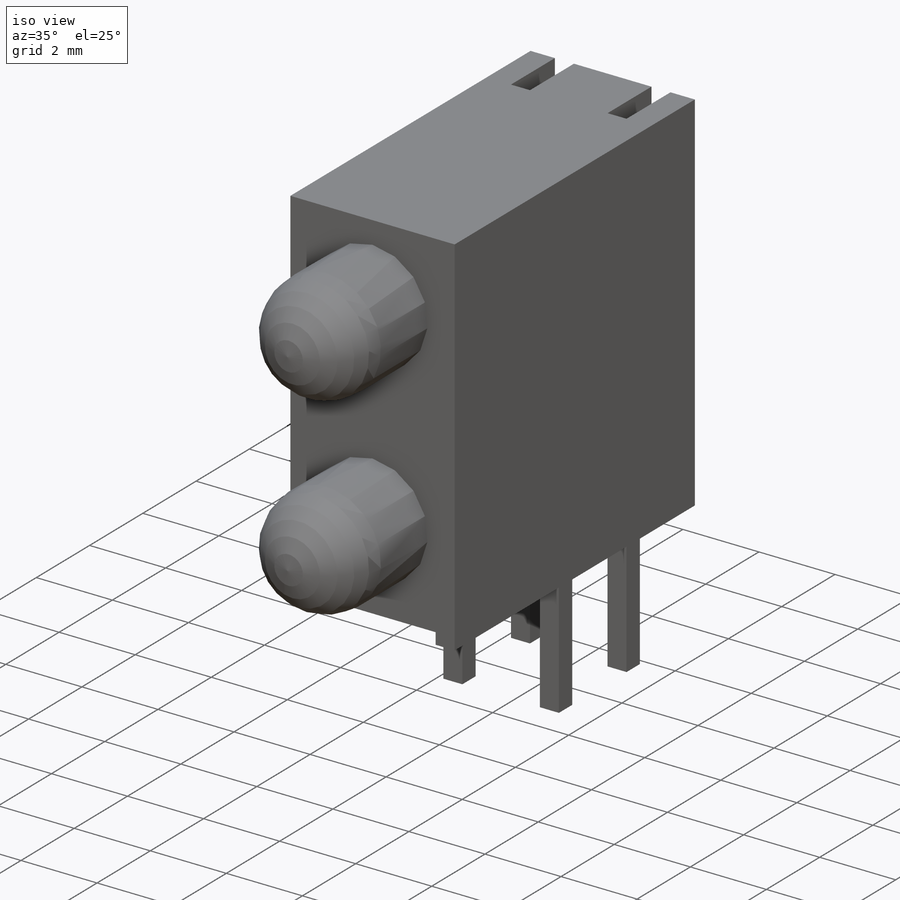
[diagram: iso view]
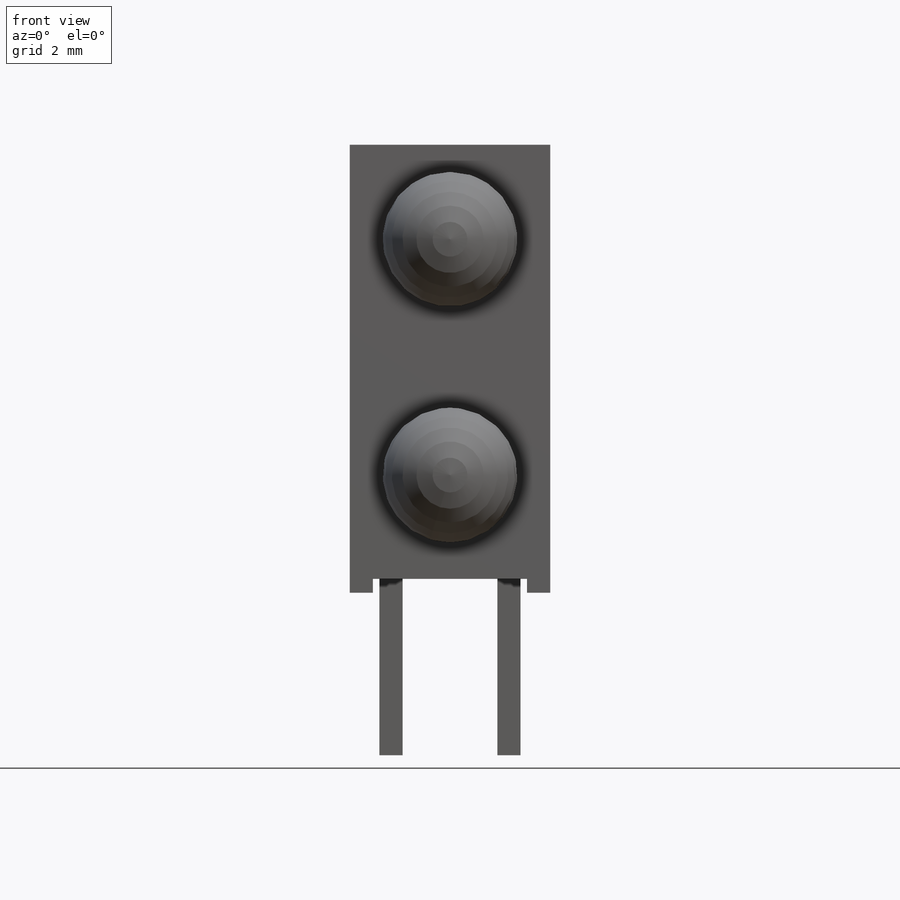
[diagram: front view]
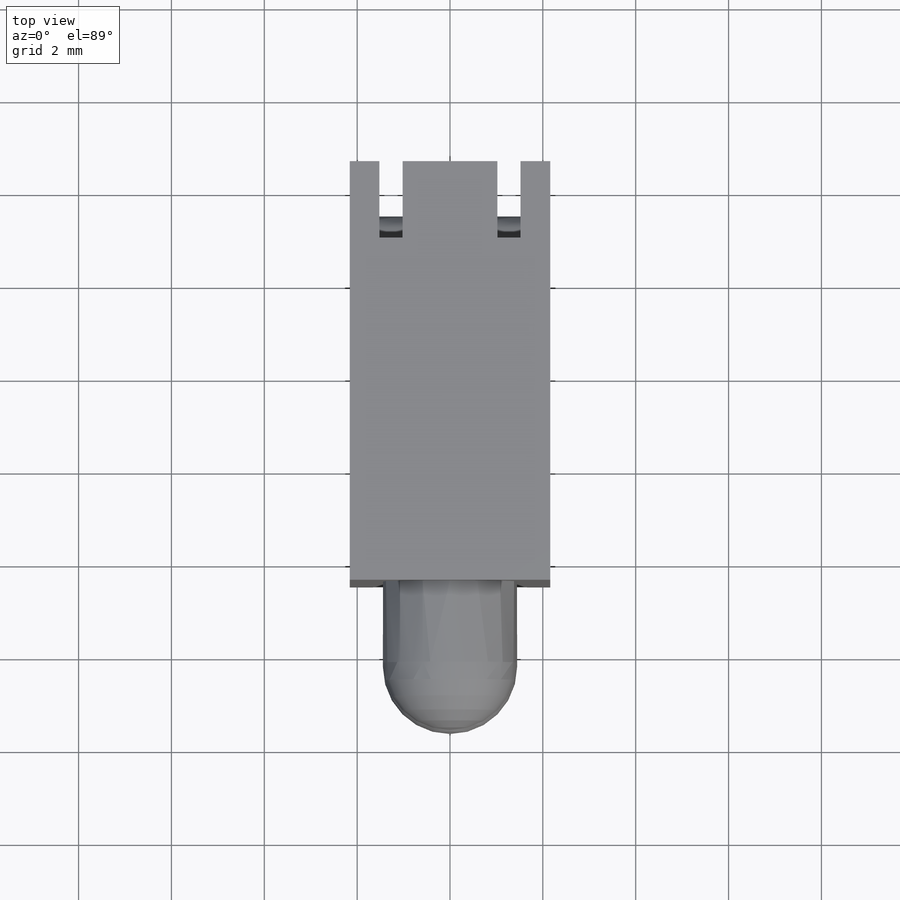
[diagram: top view]
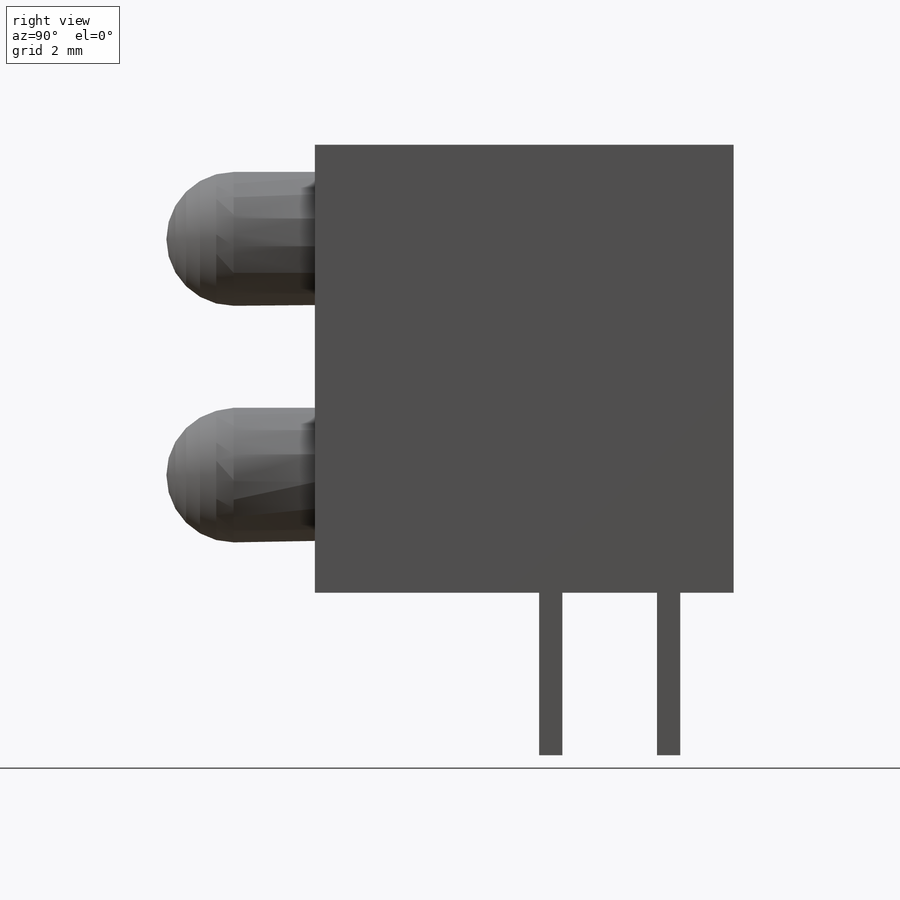
[diagram: right view]
SOLIDWORKS PART (.sldprt)
format: sldprt  version: not decoded by parser v0  size: 761,344 bytes
history: native  units: mm
features: sketch x9, cut_extrude x4, extrude x3, revolve x2, material x1, fillet x1 (+12 scaffold rows collapsed)
feature tree (32):
  scaffold x12  (default folders/planes/origin — collapsed)
  material  "Material <not specified>"
  sketch  "Sketch1"  dims[D4=2.9mm D7=2.9mm D1=9.02mm D2=9.65mm D3=2.535mm D5=3.2mm D6=5.08mm D8=3.2mm]
  extrude  "Extrude1"  Depth=4.32mm
  sketch  "Sketch4"  dims[D1=0.3mm D2=0.5mm D3=0.5mm]
  cut_extrude  "Cut-Extrude1"  [1 undecoded]
  sketch  "Sketch5"  dims[D1=0.5mm D2=0.5mm D3=0.5mm D4=5.08mm D5=2.54mm D6=2.54mm]
  cut_extrude  "Cut-Extrude2"  [1 undecoded]
  extrude  "Extrude3"  [1 undecoded]
  sketch  "Sketch5<4>"
  extrude  "Extrude4"  [1 undecoded]
  sketch  "Sketch5<5>"  dims[D1=3.8mm]
  cut_extrude  "Cut-Extrude3"  [1 undecoded]
  sketch  "Sketch5<6>"
  fillet  "Fillet1"  Radius=0.5mm
  revolve  "Revolve1"  [1 undecoded]
  sketch  "Sketch1<4>"  dims[D1=360.0deg]
  revolve  "Revolve2"  [1 undecoded]
  sketch  "Sketch1<5>"  dims[D1=360.0deg]
  sketch  "Sketch6"
  cut_extrude  "Cut-Extrude4"  Depth=0.01mm
decode coverage: 9 of 19 modeling features carry decoded parameters
note: 7 parameter values undecoded
summary: no parameter record found for 7 features
note: suppression state not decoded; provenance and decode notes live in map.json
